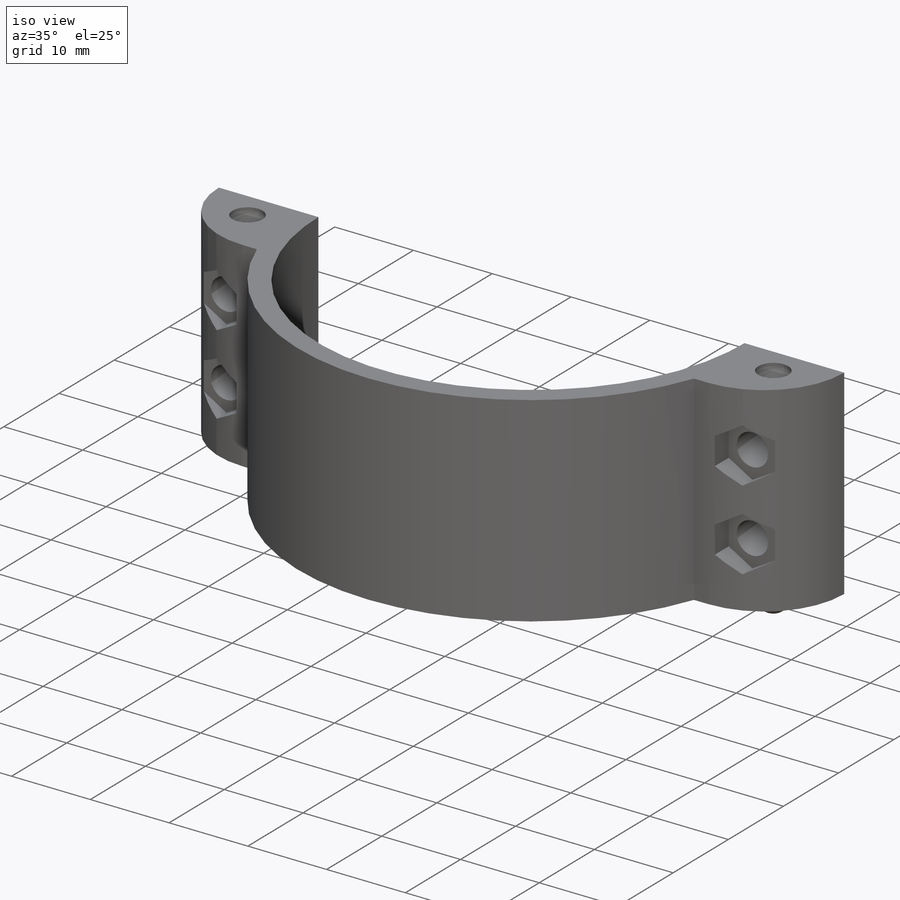
[diagram: iso view]
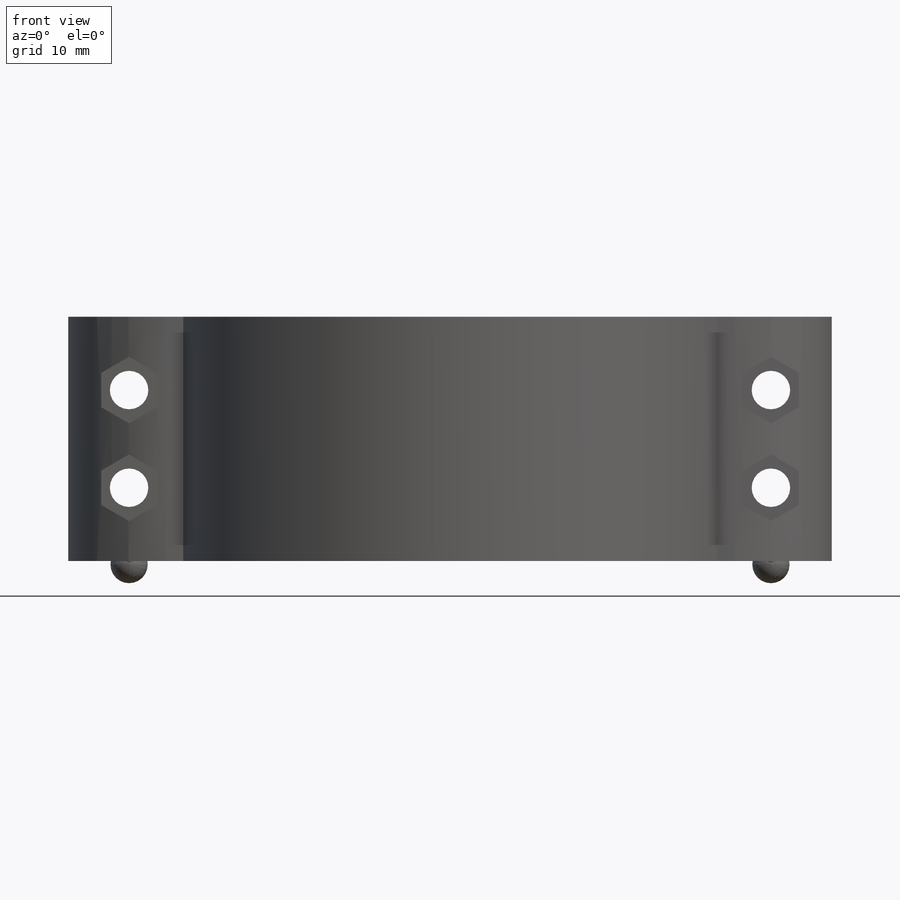
[diagram: front view]
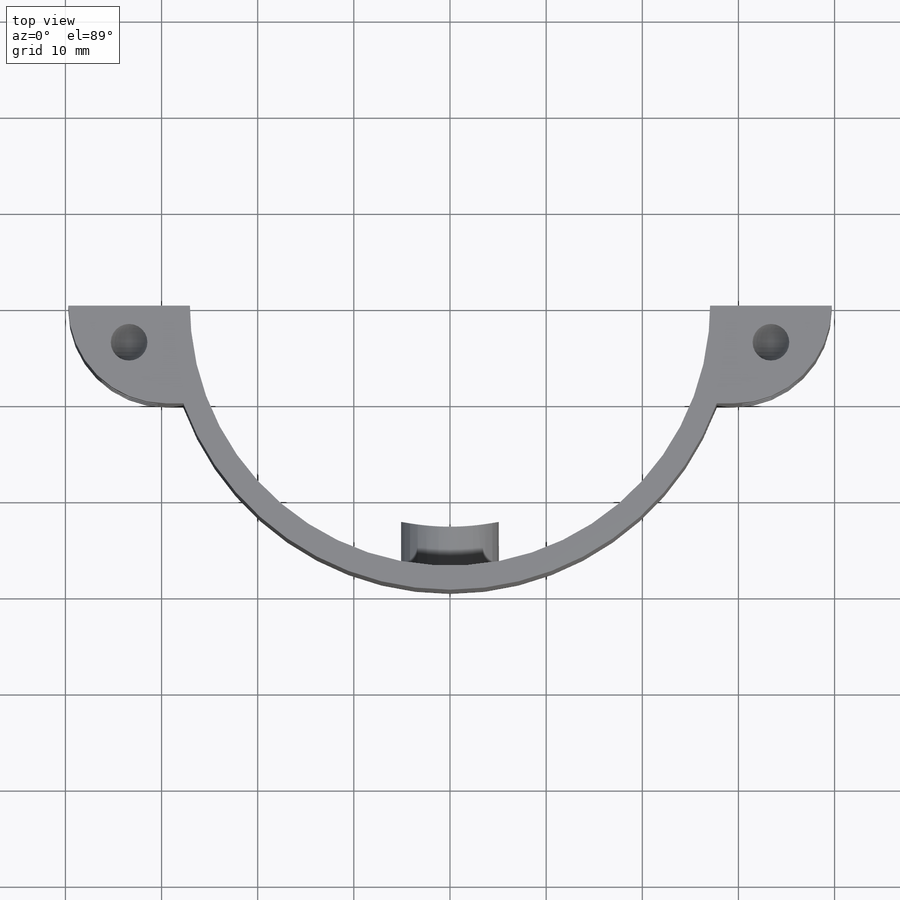
[diagram: top view]
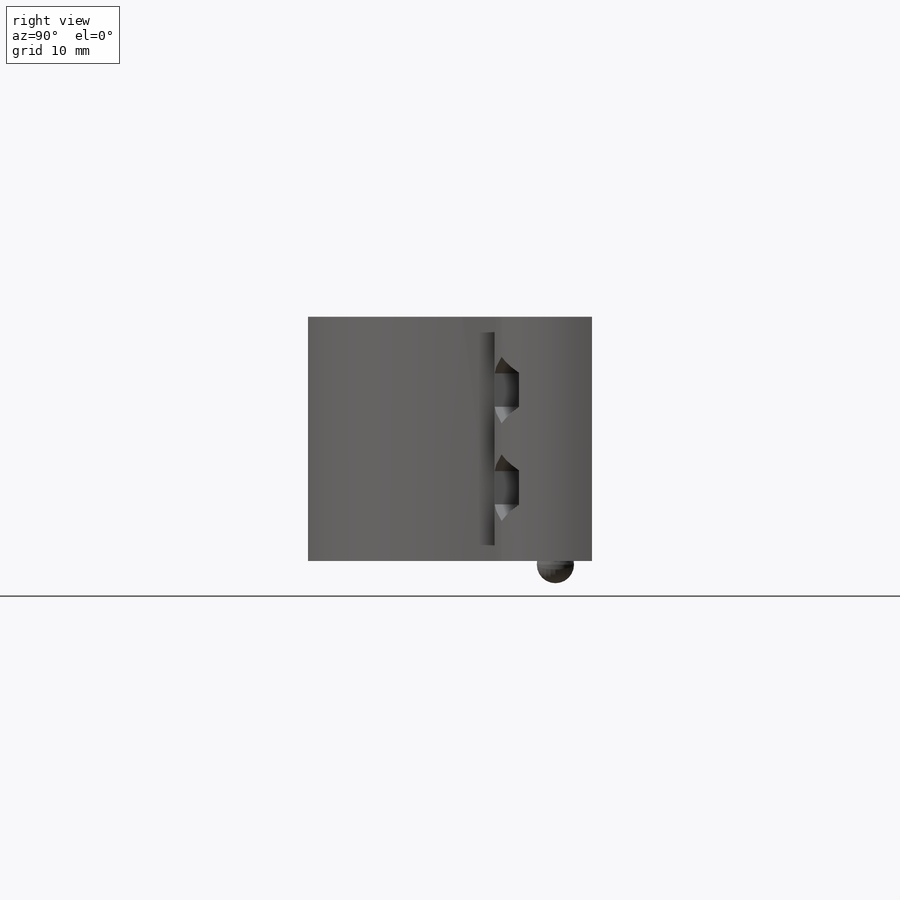
[diagram: right view]
SOLIDWORKS PART (.sldprt)
format: sldprt  version: not decoded by parser v0  size: 348,672 bytes
history: native  units: mm
features: sketch x8, cut_extrude x4, dome x4, extrude x3, material x1, plane x1 (+13 scaffold rows collapsed)
feature tree (34):
  scaffold x13  (default folders/planes/origin — collapsed)
  material  "Material <not specified>"
  sketch  "Sketch3"  dims[c1.D1=54.102mm c1.D2=41.91mm c1.D3=27.051mm c1.D4=~29.549701mm c2.D1=27.051mm c2.D3=10.16mm c2.D4=10.16mm c3.D1=10.16mm c3.D2=10.16mm c3.D4=~2.498701mm]
  extrude  "Boss-Extrude5"  Depth=12.7mm
  plane  "Plane1"
  sketch  "Sketch5"  dims[D1=10.16mm]
  sketch  "Sketch6"  dims[c1.D3=4.0mm c1.D4=4.0mm c1.D7=4.0mm c1.D8=4.0mm c1.D2=4.0mm c1.D1=7.62mm c2.D2=7.62mm c2.D5=7.62mm c2.D6=7.62mm c2.D1=7.62mm]
  cut_extrude  "Cut-Extrude4"  [1 undecoded]
  sketch  "Sketch7"  dims[D1=6.0mm D2=6.0mm D3=6.0mm D4=6.0mm]
  cut_extrude  "Cut-Extrude5"  Depth=2.54mm
  sketch  "Sketch9"  dims[D2=3.81mm D1=3.81mm]
  extrude  "Boss-Extrude9"  Depth=0.0254mm
  dome  "Dome3"
  dome  "Dome4"
  sketch  "Sketch10"  dims[D1=3.81mm D2=3.81mm]
  cut_extrude  "Cut-Extrude6"  Depth=0.0254mm
  dome  "Dome5"
  dome  "Dome6"
  sketch  "Sketch11"  dims[D1=10.16mm]
  extrude  "Boss-Extrude10"  Depth=8.382mm
  sketch  "Sketch13"  dims[D1=45.72mm]
  cut_extrude  "Cut-Extrude7"  Depth=10.414mm
decode coverage: 14 of 19 modeling features carry decoded parameters
note: ~ marks probable driven/reference dimensions
note: 1 parameter value undecoded
note: suppression state not decoded; provenance and decode notes live in map.json
